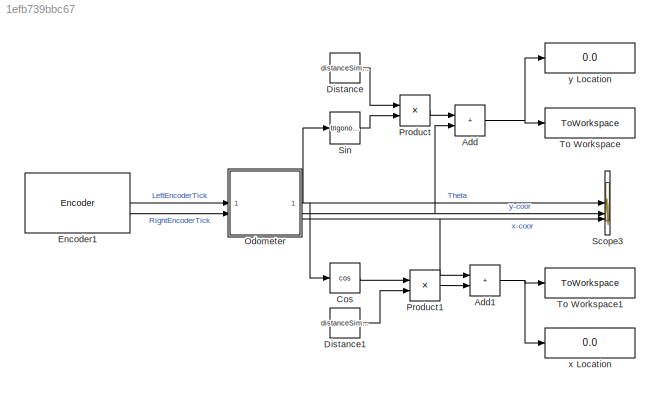
MODEL slx_1efb739bbc67
KIND model
CONFIG AbsTol = auto
CONFIG EnableMultiTasking = off
CONFIG FixedStep = auto
CONFIG MaxStep = auto
CONFIG MinStep = auto
CONFIG RelTol = 1e-3
CONFIG SampleTimeConstraint = Unconstrained
CONFIG SolverName = VariableStepAuto
CONFIG StartTime = 0.0
CONFIG StopTime = 10.0
BLOCK [Sum] Add
  IconShape = rectangular
BLOCK [Sum] Add1
  IconShape = rectangular
BLOCK [Trigonometry] Cos
  Operator = cos
BLOCK [Constant] Distance
  Value = distanceSimulated
BLOCK [Constant] Distance1
  Value = distanceSimulated
BLOCK [Reference] Encoder1  REF=mobileRoboticsTrainingLib/Encoder
  SourceBlock = mobileRoboticsTrainingLib/Encoder
  SourceProductName = Mobile Robotics Training Library
  SourceType = Encoder Simulation
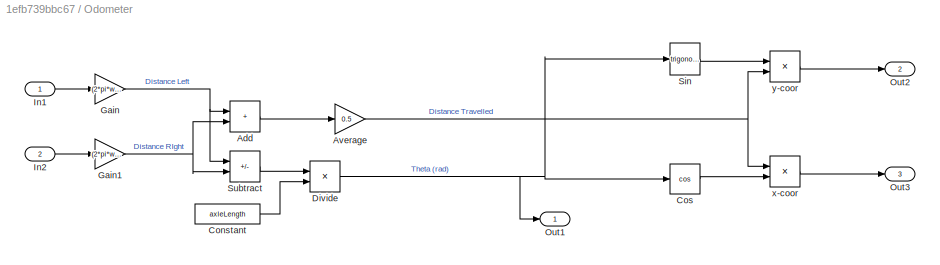
BLOCK [SubSystem] Odometer
BLOCK [Sum] Odometer/Add
  IconShape = rectangular
BLOCK [Gain] Odometer/Average
  Gain = 0.5
BLOCK [Constant] Odometer/Constant
  Value = axleLength
BLOCK [Trigonometry] Odometer/Cos
  Operator = cos
  OutputSignalType = real
BLOCK [Product] Odometer/Divide
  Inputs = */
BLOCK [Gain] Odometer/Gain
  Gain = (2*pi*wheelR)/ticksPerRot
BLOCK [Gain] Odometer/Gain1
  Gain = (2*pi*wheelR)/ticksPerRot
BLOCK [Inport] Odometer/In1
BLOCK [Inport] Odometer/In2
  Port = 2
BLOCK [Outport] Odometer/Out1
BLOCK [Outport] Odometer/Out2
  Port = 2
BLOCK [Outport] Odometer/Out3
  Port = 3
BLOCK [Trigonometry] Odometer/Sin
  OutputSignalType = real
BLOCK [Sum] Odometer/Subtract
  IconShape = rectangular
  Inputs = -+
BLOCK [Product] Odometer/x-coor
BLOCK [Product] Odometer/y-coor
BLOCK [Product] Product
BLOCK [Product] Product1
BLOCK [Scope] Scope3
  Floating = off
  NumInputPorts = 3
  ScopeSpecificationString = Simulink.scopes.TimeScopeBlockCfg('CurrentConfiguration', extmgr.ConfigurationSet(extmgr.Configuration('Core','General UI',true),extmgr.Configuration('Core','Source UI',true),extmgr.Configuration('Sources','WiredSimulink',true),extmgr.Configuration('Visuals','Time Domain',true,'SerializedDisplays',{struct('MinYLimReal','-298.33028','MaxYLimReal','1593.00983','YLabelReal','','MinYLimMag',' 0.00000'...<+1418ch>
BLOCK [Trigonometry] Sin
BLOCK [ToWorkspace] To Workspace
  FixptAsFi = on
  MaxDataPoints = inf
  SampleTime = -1
  SaveFormat = Timeseries
  VariableName = yLocation
BLOCK [ToWorkspace] To Workspace1
  FixptAsFi = on
  MaxDataPoints = inf
  SampleTime = -1
  SaveFormat = Timeseries
  VariableName = xLocation
BLOCK [Display] x Location
  Decimation = 1
BLOCK [Display] y Location
  Decimation = 1
NET Add1:1 -> To Workspace1:1, x Location:1
NET Add:1 -> To Workspace:1, y Location:1
LINE Cos:1 -> Product1:1
LINE Distance1:1 -> Product1:2
LINE Distance:1 -> Product:1
LINE Encoder1:1 -> Odometer:1
LINE Encoder1:2 -> Odometer:2
LINE Odometer/Add:1 -> Odometer/Average:1
NET Odometer/Average:1 -> Odometer/x-coor:1, Odometer/y-coor:2
LINE Odometer/Constant:1 -> Odometer/Divide:2
LINE Odometer/Cos:1 -> Odometer/x-coor:2
NET Odometer/Divide:1 -> Odometer/Cos:1, Odometer/Out1:1, Odometer/Sin:1
NET Odometer/Gain1:1 -> Odometer/Add:2, Odometer/Subtract:2
NET Odometer/Gain:1 -> Odometer/Add:1, Odometer/Subtract:1
LINE Odometer/In1:1 -> Odometer/Gain:1
LINE Odometer/In2:1 -> Odometer/Gain1:1
LINE Odometer/Sin:1 -> Odometer/y-coor:1
LINE Odometer/Subtract:1 -> Odometer/Divide:1
LINE Odometer/x-coor:1 -> Odometer/Out3:1
LINE Odometer/y-coor:1 -> Odometer/Out2:1
NET Odometer:1 -> Cos:1, Scope3:1, Sin:1
NET Odometer:2 -> Add:2, Scope3:2
NET Odometer:3 -> Add1:1, Scope3:3
LINE Product1:1 -> Add1:2
LINE Product:1 -> Add:1
LINE Sin:1 -> Product:2
note: NET lines group one-source signal fan-out (src -> all destinations, sorted); 1:1 wires keep LINE
